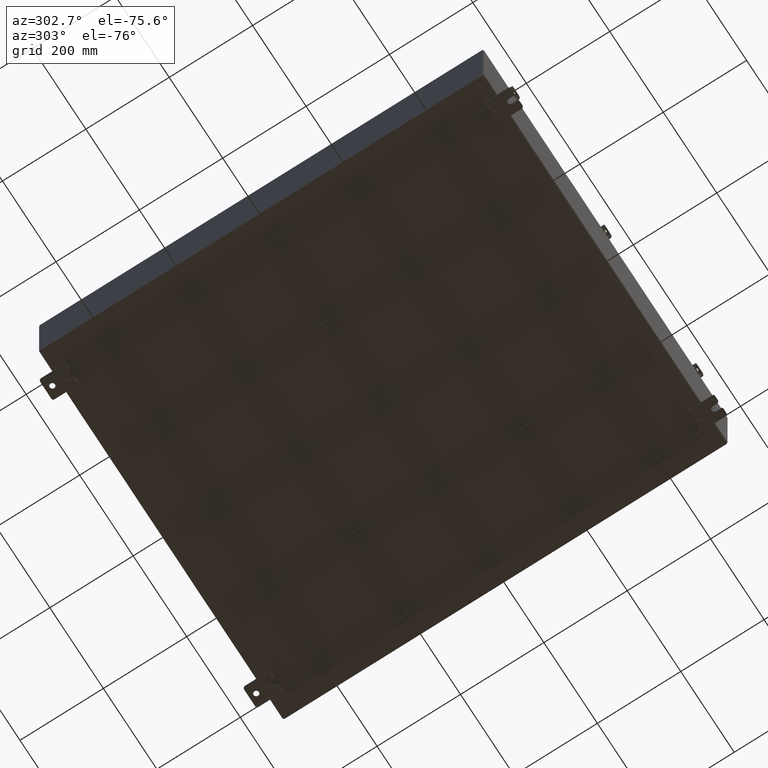
[diagram: clean part render]
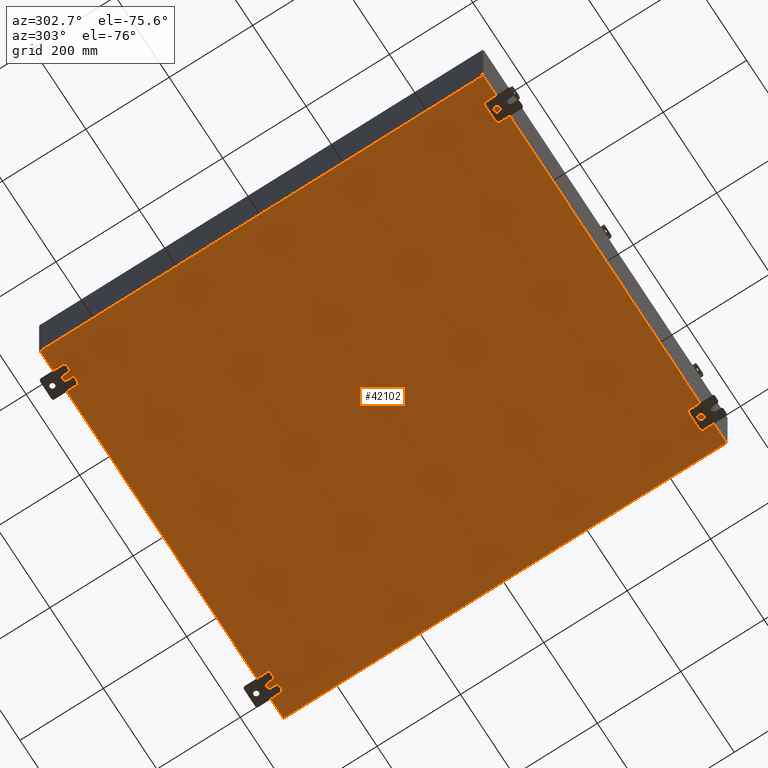
[diagram: same view with one face highlighted and labeled with its STEP entity id]
A machine part, auxiliary view. The second image highlights one B-rep face of the part: STEP entity #42102.
In plain terms, the highlighted planar face has unit normal (0, 0, -1).
Its self-contained STEP definition (entity closure, byte-faithful):
#1128 = EDGE_CURVE ( 'NONE', #16728, #46922, #46160, .T. ) ;
#1169 = DIRECTION ( 'NONE',  ( -1.000000000000000000, 0.0000000000000000000, -0.0000000000000000000 ) ) ;
#2637 = CARTESIAN_POINT ( 'NONE',  ( -17.91229999999999800, 20.92529999999999600, -0.07469999999999998900 ) ) ;
#3781 = VERTEX_POINT ( 'NONE', #23980 ) ;
#4491 = CARTESIAN_POINT ( 'NONE',  ( -17.91229999999999800, -20.92529999999999300, -0.07469999999999996100 ) ) ;
#6702 = DIRECTION ( 'NONE',  ( -0.0000000000000000000, -1.000000000000000000, -0.0000000000000000000 ) ) ;
#8733 = ORIENTED_EDGE ( 'NONE', *, *, #21106, .T. ) ;
#10037 = VERTEX_POINT ( 'NONE', #39204 ) ;
#10536 = ORIENTED_EDGE ( 'NONE', *, *, #1128, .T. ) ;
#11877 = DIRECTION ( 'NONE',  ( 1.000000000000000000, -1.214154663850783700E-016, 0.0000000000000000000 ) ) ;
#12163 = VECTOR ( 'NONE', #11877, 39.37007874015748100 ) ;
#14277 = EDGE_LOOP ( 'NONE', ( #46792, #10536, #39040, #8733 ) ) ;
#15698 = EDGE_CURVE ( 'NONE', #10037, #46922, #41892, .T. ) ;
#16059 = FACE_OUTER_BOUND ( 'NONE', #14277, .T. ) ;
#16728 = VERTEX_POINT ( 'NONE', #4491 ) ;
#18643 = LINE ( 'NONE', #45860, #27906 ) ;
#20733 = CARTESIAN_POINT ( 'NONE',  ( 0.0000000000000000000, 0.0000000000000000000, -0.07469999999999998900 ) ) ;
#21106 = EDGE_CURVE ( 'NONE', #10037, #3781, #18643, .T. ) ;
#22620 = LINE ( 'NONE', #23551, #12163 ) ;
#23551 = CARTESIAN_POINT ( 'NONE',  ( -17.99999999999999600, -20.92530000000000400, -0.07469999999999998900 ) ) ;
#23980 = CARTESIAN_POINT ( 'NONE',  ( 17.91230000000000200, -20.92530000000000700, -0.07469999999999998900 ) ) ;
#24643 = DIRECTION ( 'NONE',  ( 0.0000000000000000000, 0.0000000000000000000, -1.000000000000000000 ) ) ;
#25010 = EDGE_CURVE ( 'NONE', #16728, #3781, #22620, .T. ) ;
#27906 = VECTOR ( 'NONE', #6702, 39.37007874015748100 ) ;
#31436 = VECTOR ( 'NONE', #40445, 39.37007874015748100 ) ;
#32542 = CARTESIAN_POINT ( 'NONE',  ( -17.99999999999999600, 20.92529999999999600, -0.07469999999999998900 ) ) ;
#34323 = CARTESIAN_POINT ( 'NONE',  ( -17.91229999999999800, -20.92529999999999600, -0.07469999999999996100 ) ) ;
#35705 = VECTOR ( 'NONE', #42215, 39.37007874015748100 ) ;
#39040 = ORIENTED_EDGE ( 'NONE', *, *, #15698, .F. ) ;
#39204 = CARTESIAN_POINT ( 'NONE',  ( 17.91230000000000200, 20.92529999999998600, -0.07469999999999996100 ) ) ;
#40445 = DIRECTION ( 'NONE',  ( -1.000000000000000000, -0.0000000000000000000, -0.0000000000000000000 ) ) ;
#41892 = LINE ( 'NONE', #32542, #31436 ) ;
#42102 = ADVANCED_FACE ( 'NONE', ( #16059 ), #44292, .T. ) ;
#42215 = DIRECTION ( 'NONE',  ( -0.0000000000000000000, 1.000000000000000000, -0.0000000000000000000 ) ) ;
#44292 = PLANE ( 'NONE',  #45191 ) ;
#45191 = AXIS2_PLACEMENT_3D ( 'NONE', #20733, #24643, #1169 ) ;
#45860 = CARTESIAN_POINT ( 'NONE',  ( 17.91230000000000200, 20.92529999999998900, -0.07469999999999996100 ) ) ;
#46160 = LINE ( 'NONE', #34323, #35705 ) ;
#46792 = ORIENTED_EDGE ( 'NONE', *, *, #25010, .F. ) ;
#46922 = VERTEX_POINT ( 'NONE', #2637 ) ;